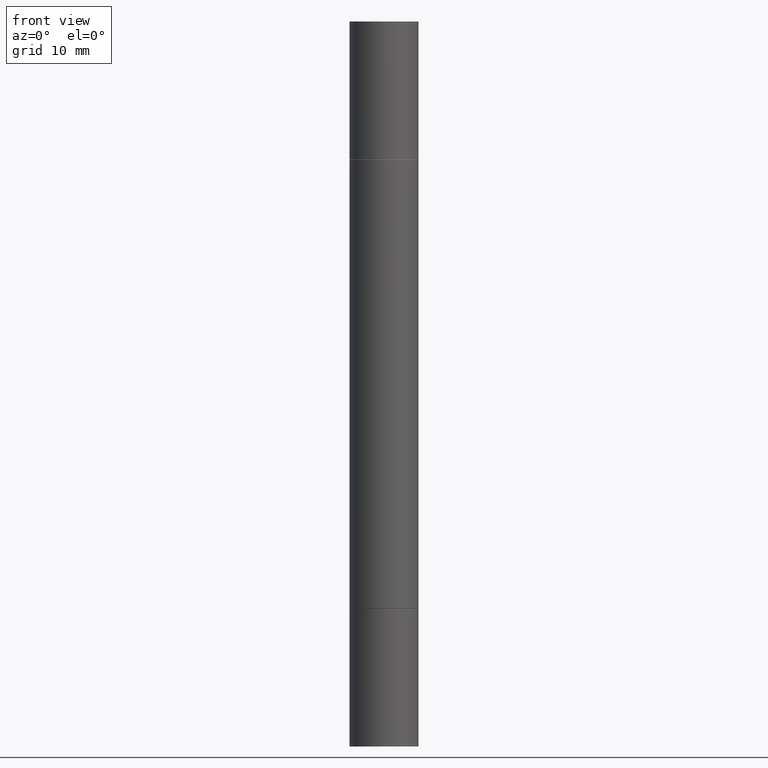
[diagram: clean part render]
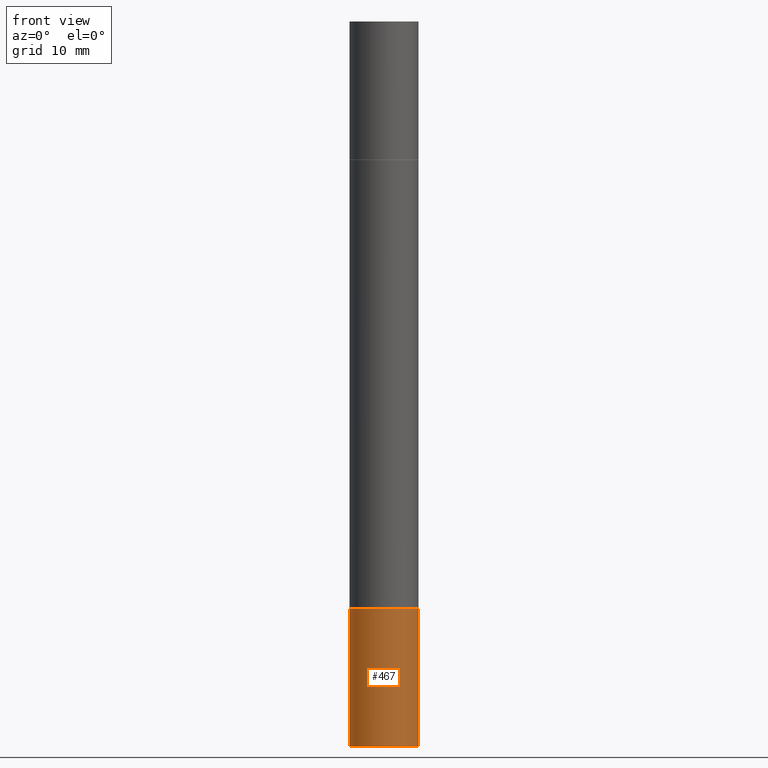
[diagram: same view with one face highlighted and labeled with its STEP entity id]
A machine part, front view. The second image highlights one B-rep face of the part: STEP entity #467.
In plain terms, the highlighted cylindrical surface (edge-blend (fillet) strip) has radius 2.9997 mm, axis along (-0, 0, 1).
Its self-contained STEP definition (entity closure, byte-faithful):
#15 = DIRECTION ( 'NONE',  ( -2.445468806185136597E-29, 3.491481338843145583E-15, 1.000000000000000000 ) ) ;
#55 = EDGE_CURVE ( 'NONE', #186, #389, #441, .T. ) ;
#56 = CARTESIAN_POINT ( 'NONE',  ( 6.065496279980994755E-29, -8.659921164732655335E-15, -2.480300000000000171 ) ) ;
#67 = CYLINDRICAL_SURFACE ( 'NONE', #113, 0.1180999999999999966 ) ;
#73 = DIRECTION ( 'NONE',  ( 1.000000000000000000, -6.982962677686266711E-15, 4.876176775795936353E-29 ) ) ;
#89 = DIRECTION ( 'NONE',  ( -2.445468806185136597E-29, 3.491481338843145583E-15, 1.000000000000000000 ) ) ;
#92 = ORIENTED_EDGE ( 'NONE', *, *, #282, .T. ) ;
#113 = AXIS2_PLACEMENT_3D ( 'NONE', #535, #478, #73 ) ;
#134 = VERTEX_POINT ( 'NONE', #655 ) ;
#142 = VERTEX_POINT ( 'NONE', #444 ) ;
#182 = EDGE_LOOP ( 'NONE', ( #384, #470, #92, #504 ) ) ;
#186 = VERTEX_POINT ( 'NONE', #562 ) ;
#200 = EDGE_CURVE ( 'NONE', #389, #134, #553, .T. ) ;
#206 = CARTESIAN_POINT ( 'NONE',  ( 0.1180999999999999966, -8.246878922347480654E-16, 5.758764772215000440E-30 ) ) ;
#238 = EDGE_CURVE ( 'NONE', #186, #142, #602, .T. ) ;
#240 = CARTESIAN_POINT ( 'NONE',  ( 4.910256815939136430E-29, -7.010545380263152499E-15, -2.007900000000000240 ) ) ;
#262 = VECTOR ( 'NONE', #419, 39.37007874015748143 ) ;
#282 = EDGE_CURVE ( 'NONE', #142, #134, #361, .T. ) ;
#318 = DIRECTION ( 'NONE',  ( 1.000000000000000000, -6.982962677686273021E-15, 0.000000000000000000 ) ) ;
#325 = FACE_OUTER_BOUND ( 'NONE', #182, .T. ) ;
#361 = LINE ( 'NONE', #206, #262 ) ;
#362 = AXIS2_PLACEMENT_3D ( 'NONE', #56, #15, #318 ) ;
#384 = ORIENTED_EDGE ( 'NONE', *, *, #55, .F. ) ;
#386 = DIRECTION ( 'NONE',  ( 1.000000000000000000, -6.982962677686265133E-15, 0.000000000000000000 ) ) ;
#389 = VERTEX_POINT ( 'NONE', #455 ) ;
#419 = DIRECTION ( 'NONE',  ( -2.445468806185136877E-29, 3.491481338843145188E-15, 1.000000000000000000 ) ) ;
#441 = LINE ( 'NONE', #548, #629 ) ;
#444 = CARTESIAN_POINT ( 'NONE',  ( 0.1180999999999999966, -9.484609056967403598E-15, -2.480300000000000171 ) ) ;
#455 = CARTESIAN_POINT ( 'NONE',  ( -0.1180999999999999966, -6.996082301565225720E-15, -2.007900000000000240 ) ) ;
#467 = ADVANCED_FACE ( 'NONE', ( #325 ), #67, .T. ) ;
#470 = ORIENTED_EDGE ( 'NONE', *, *, #238, .T. ) ;
#478 = DIRECTION ( 'NONE',  ( -2.445468806185136597E-29, 3.491481338843145583E-15, 1.000000000000000000 ) ) ;
#484 = AXIS2_PLACEMENT_3D ( 'NONE', #240, #89, #386 ) ;
#504 = ORIENTED_EDGE ( 'NONE', *, *, #200, .F. ) ;
#506 = DIRECTION ( 'NONE',  ( -2.445468806185136877E-29, 3.491481338843145188E-15, 1.000000000000000000 ) ) ;
#535 = CARTESIAN_POINT ( 'NONE',  ( 0.000000000000000000, 0.000000000000000000, 0.000000000000000000 ) ) ;
#548 = CARTESIAN_POINT ( 'NONE',  ( -0.1180999999999999966, 8.391509709326782957E-16, -5.809262341591043784E-30 ) ) ;
#553 = CIRCLE ( 'NONE', #484, 0.1180999999999999966 ) ;
#562 = CARTESIAN_POINT ( 'NONE',  ( -0.1180999999999999966, -6.996082301565225720E-15, -2.480300000000000171 ) ) ;
#602 = CIRCLE ( 'NONE', #362, 0.1180999999999999966 ) ;
#629 = VECTOR ( 'NONE', #506, 39.37007874015748143 ) ;
#655 = CARTESIAN_POINT ( 'NONE',  ( 0.1180999999999999966, -7.835233272497900762E-15, -2.007900000000000240 ) ) ;